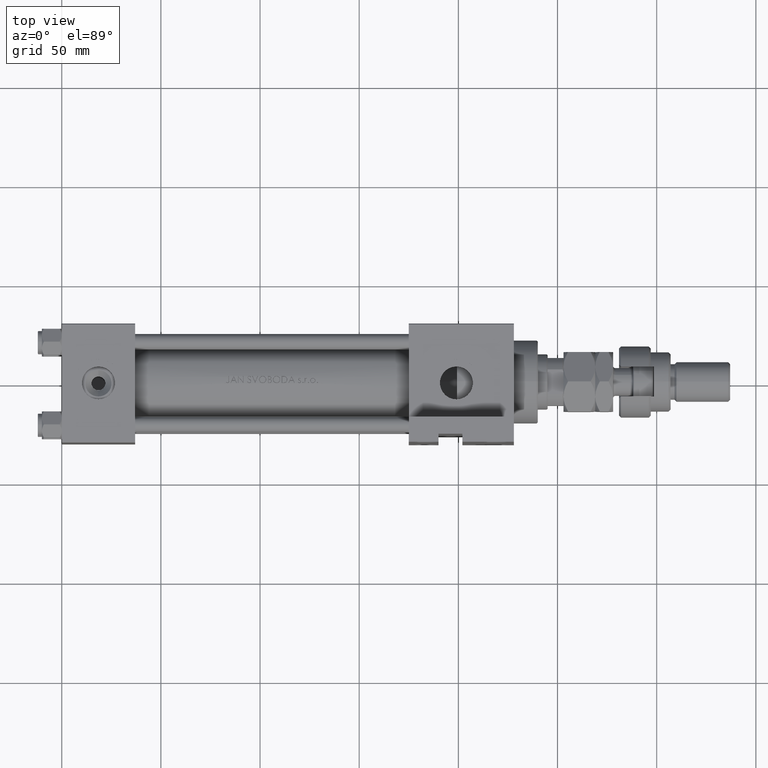
[diagram: clean part render]
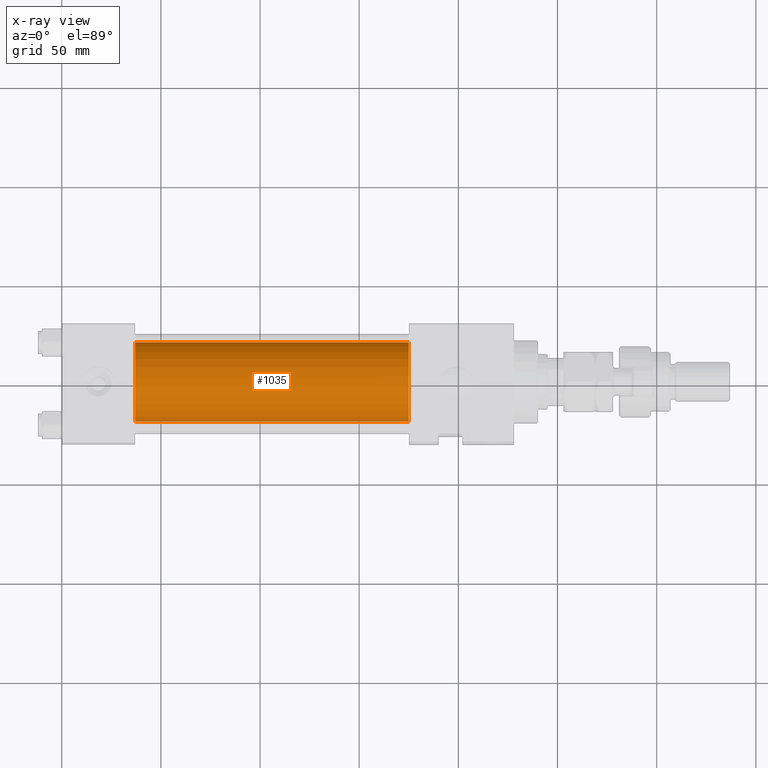
[diagram: x-ray — body ghosted, one internal face saturated and labeled with its STEP entity id]
A machine part, top view, then the same camera in x-ray: the body is ghosted and one INTERNAL B-rep face — a face not visible from any outside direction — is saturated and labeled: STEP entity #1035.
In plain terms, the highlighted cylindrical surface (partial cylindrical patch) has radius 20 mm, axis along (-1, -0, 0).
Its self-contained STEP definition (entity closure, byte-faithful):
#1035 = ADVANCED_FACE ( 'NONE', ( #2707 ), #18707, .F. ) ;
#1046 = LINE ( 'NONE', #17587, #22873 ) ;
#1158 = EDGE_CURVE ( 'NONE', #50766, #8468, #19793, .T. ) ;
#2707 = FACE_OUTER_BOUND ( 'NONE', #32034, .T. ) ;
#3480 = CARTESIAN_POINT ( 'NONE',  ( 37.00000000000000000, -1.224646799147354686E-16, 21.00000000000000000 ) ) ;
#4306 = CARTESIAN_POINT ( 'NONE',  ( 175.0000000000000284, -1.224646799147354686E-16, 21.00000000000000000 ) ) ;
#5966 = DIRECTION ( 'NONE',  ( -1.000000000000000000, -0.000000000000000000, -0.000000000000000000 ) ) ;
#7484 = CARTESIAN_POINT ( 'NONE',  ( 175.0000000000000284, 2.326828918379970970E-15, -19.00000000000000000 ) ) ;
#8468 = VERTEX_POINT ( 'NONE', #3480 ) ;
#9136 = CARTESIAN_POINT ( 'NONE',  ( 175.0000000000000284, -1.224646799147354686E-16, 1.000000000000000888 ) ) ;
#11689 = EDGE_CURVE ( 'NONE', #50766, #42662, #47710, .T. ) ;
#12451 = DIRECTION ( 'NONE',  ( 0.000000000000000000, 0.000000000000000000, -1.000000000000000000 ) ) ;
#13132 = AXIS2_PLACEMENT_3D ( 'NONE', #9136, #25689, #21346 ) ;
#17587 = CARTESIAN_POINT ( 'NONE',  ( 175.0000000000000284, 2.326828918379970970E-15, -19.00000000000000000 ) ) ;
#17638 = CIRCLE ( 'NONE', #28909, 20.00000000000000000 ) ;
#18707 = CYLINDRICAL_SURFACE ( 'NONE', #26573, 20.00000000000000000 ) ;
#19247 = CARTESIAN_POINT ( 'NONE',  ( 175.0000000000000284, -1.224646799147354686E-16, 1.000000000000000888 ) ) ;
#19793 = LINE ( 'NONE', #4306, #24872 ) ;
#20499 = CARTESIAN_POINT ( 'NONE',  ( 175.0000000000000284, -1.224646799147354686E-16, 21.00000000000000000 ) ) ;
#21346 = DIRECTION ( 'NONE',  ( 0.000000000000000000, 0.000000000000000000, -1.000000000000000000 ) ) ;
#22452 = DIRECTION ( 'NONE',  ( -1.000000000000000000, -0.000000000000000000, -0.000000000000000000 ) ) ;
#22633 = VERTEX_POINT ( 'NONE', #34539 ) ;
#22873 = VECTOR ( 'NONE', #22452, 1000.000000000000000 ) ;
#24872 = VECTOR ( 'NONE', #37368, 1000.000000000000000 ) ;
#25689 = DIRECTION ( 'NONE',  ( 1.000000000000000000, 0.000000000000000000, 0.000000000000000000 ) ) ;
#26573 = AXIS2_PLACEMENT_3D ( 'NONE', #19247, #5966, #40103 ) ;
#28909 = AXIS2_PLACEMENT_3D ( 'NONE', #32539, #29008, #12451 ) ;
#29008 = DIRECTION ( 'NONE',  ( 1.000000000000000000, 0.000000000000000000, 0.000000000000000000 ) ) ;
#32034 = EDGE_LOOP ( 'NONE', ( #45406, #36764, #38828, #38331 ) ) ;
#32539 = CARTESIAN_POINT ( 'NONE',  ( 37.00000000000000000, -1.224646799147354686E-16, 1.000000000000000888 ) ) ;
#34539 = CARTESIAN_POINT ( 'NONE',  ( 37.00000000000000000, 2.326828918379970970E-15, -19.00000000000000000 ) ) ;
#36764 = ORIENTED_EDGE ( 'NONE', *, *, #47966, .T. ) ;
#37368 = DIRECTION ( 'NONE',  ( -1.000000000000000000, -0.000000000000000000, -0.000000000000000000 ) ) ;
#38331 = ORIENTED_EDGE ( 'NONE', *, *, #1158, .F. ) ;
#38828 = ORIENTED_EDGE ( 'NONE', *, *, #51325, .F. ) ;
#40103 = DIRECTION ( 'NONE',  ( 0.000000000000000000, 0.000000000000000000, 1.000000000000000000 ) ) ;
#42662 = VERTEX_POINT ( 'NONE', #7484 ) ;
#45406 = ORIENTED_EDGE ( 'NONE', *, *, #11689, .T. ) ;
#47710 = CIRCLE ( 'NONE', #13132, 20.00000000000000000 ) ;
#47966 = EDGE_CURVE ( 'NONE', #42662, #22633, #1046, .T. ) ;
#50766 = VERTEX_POINT ( 'NONE', #20499 ) ;
#51325 = EDGE_CURVE ( 'NONE', #8468, #22633, #17638, .T. ) ;